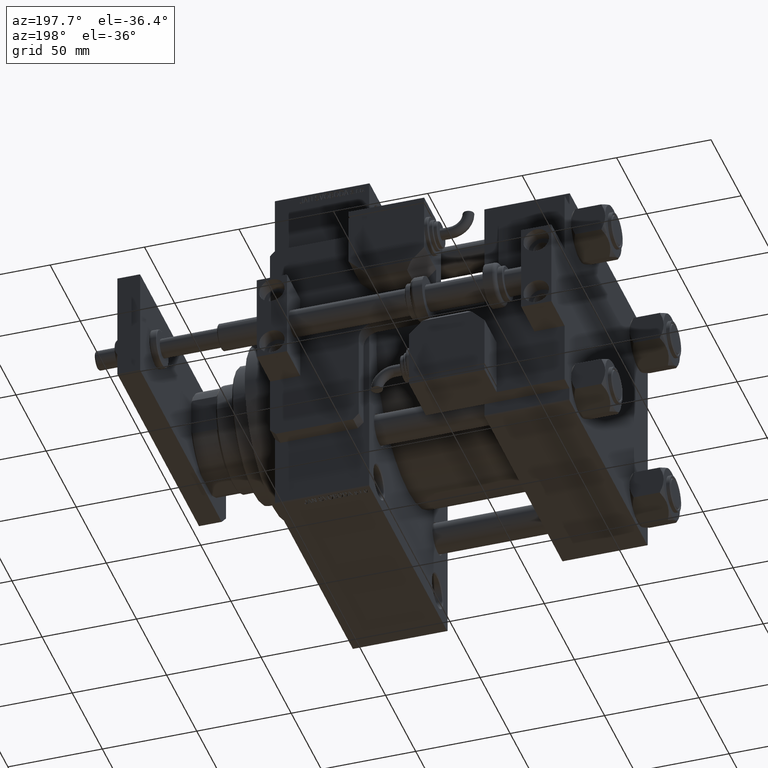
[diagram: clean part render]
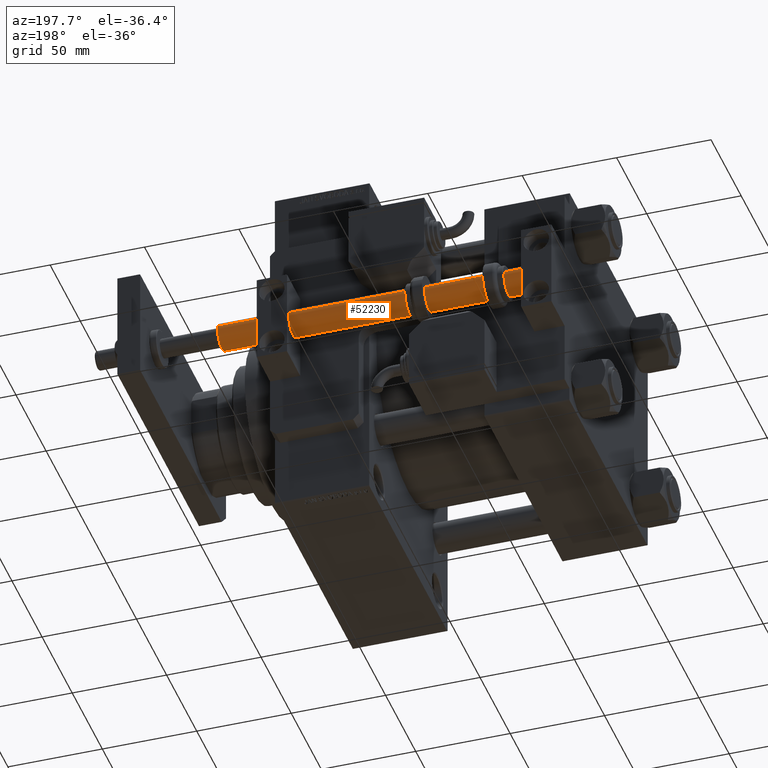
[diagram: same view with one face highlighted and labeled with its STEP entity id]
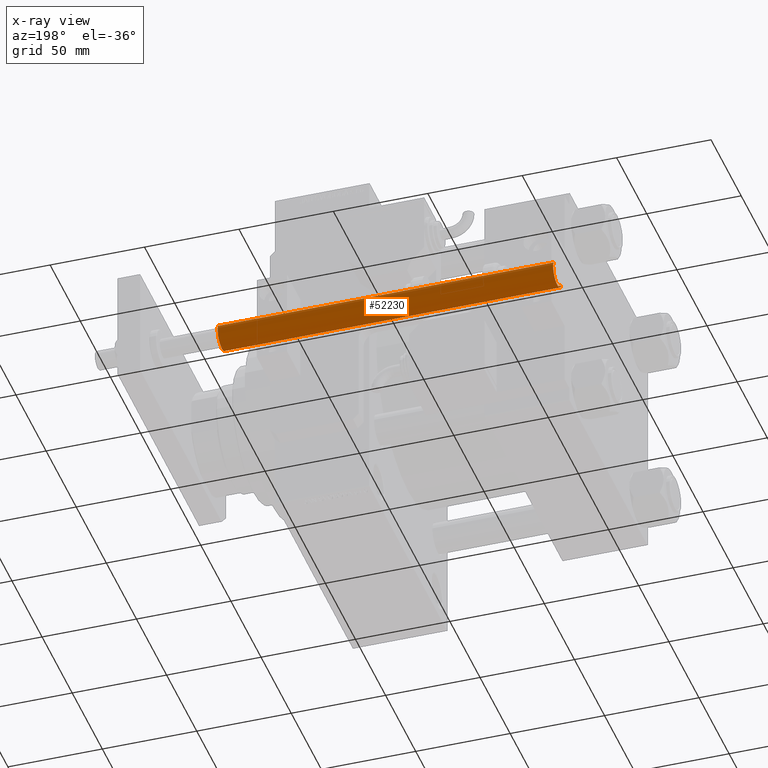
[diagram: x-ray of the same camera — body ghosted, the highlighted face saturated]
A machine part, auxiliary view. The second image highlights one B-rep face of the part: STEP entity #52230.
The next image is the same camera in x-ray: the body ghosted, the highlighted face saturated — about 0% of this face is hidden behind the body in this view.
In plain terms, the highlighted cylindrical surface (edge-blend (fillet) strip) has radius 7 mm, axis along (1, -0, 0).
Its self-contained STEP definition (entity closure, byte-faithful):
#1639 = ORIENTED_EDGE ( 'NONE', *, *, #28023, .T. ) ;
#2027 = VERTEX_POINT ( 'NONE', #12844 ) ;
#3127 = VECTOR ( 'NONE', #48361, 1000.000000000000000 ) ;
#4214 = CARTESIAN_POINT ( 'NONE',  ( -7.000000000000000000, 0.000000000000000000, 178.0000000000000000 ) ) ;
#4491 = AXIS2_PLACEMENT_3D ( 'NONE', #15153, #40550, #11104 ) ;
#7511 = CARTESIAN_POINT ( 'NONE',  ( -7.000000000000000000, 0.000000000000000000, 178.0000000000000000 ) ) ;
#9641 = ORIENTED_EDGE ( 'NONE', *, *, #39588, .F. ) ;
#10935 = DIRECTION ( 'NONE',  ( 1.000000000000000000, 0.000000000000000000, 0.000000000000000000 ) ) ;
#11104 = DIRECTION ( 'NONE',  ( 1.000000000000000000, 0.000000000000000000, 0.000000000000000000 ) ) ;
#11715 = VECTOR ( 'NONE', #36659, 1000.000000000000000 ) ;
#12132 = CYLINDRICAL_SURFACE ( 'NONE', #34728, 7.000000000000000000 ) ;
#12844 = CARTESIAN_POINT ( 'NONE',  ( 7.000000000000000000, 8.572527594031473190E-16, 0.3000000000000502265 ) ) ;
#14805 = VERTEX_POINT ( 'NONE', #32812 ) ;
#15153 = CARTESIAN_POINT ( 'NONE',  ( 0.000000000000000000, 0.000000000000000000, 178.0000000000000000 ) ) ;
#15374 = LINE ( 'NONE', #31869, #3127 ) ;
#19045 = CARTESIAN_POINT ( 'NONE',  ( 0.000000000000000000, 0.000000000000000000, 0.3000000000000502265 ) ) ;
#20512 = CARTESIAN_POINT ( 'NONE',  ( 0.000000000000000000, 0.000000000000000000, 178.0000000000000000 ) ) ;
#20785 = DIRECTION ( 'NONE',  ( -1.000000000000000000, 0.000000000000000000, 0.000000000000000000 ) ) ;
#22634 = AXIS2_PLACEMENT_3D ( 'NONE', #19045, #47964, #10935 ) ;
#24934 = EDGE_LOOP ( 'NONE', ( #28888, #25002, #1639, #9641 ) ) ;
#25002 = ORIENTED_EDGE ( 'NONE', *, *, #36528, .T. ) ;
#25263 = VERTEX_POINT ( 'NONE', #7511 ) ;
#28023 = EDGE_CURVE ( 'NONE', #2027, #51647, #42492, .T. ) ;
#28888 = ORIENTED_EDGE ( 'NONE', *, *, #52870, .F. ) ;
#29015 = CARTESIAN_POINT ( 'NONE',  ( -7.000000000000000000, 0.000000000000000000, 0.3000000000000502265 ) ) ;
#31869 = CARTESIAN_POINT ( 'NONE',  ( 7.000000000000000000, 8.572527594031473190E-16, 178.0000000000000000 ) ) ;
#32333 = LINE ( 'NONE', #4214, #11715 ) ;
#32812 = CARTESIAN_POINT ( 'NONE',  ( 7.000000000000000000, 8.572527594031473190E-16, 178.0000000000000000 ) ) ;
#34728 = AXIS2_PLACEMENT_3D ( 'NONE', #20512, #53495, #20785 ) ;
#36528 = EDGE_CURVE ( 'NONE', #14805, #2027, #15374, .T. ) ;
#36659 = DIRECTION ( 'NONE',  ( -0.000000000000000000, -0.000000000000000000, -1.000000000000000000 ) ) ;
#39588 = EDGE_CURVE ( 'NONE', #25263, #51647, #32333, .T. ) ;
#40550 = DIRECTION ( 'NONE',  ( 0.000000000000000000, 0.000000000000000000, 1.000000000000000000 ) ) ;
#42492 = CIRCLE ( 'NONE', #22634, 7.000000000000000000 ) ;
#47964 = DIRECTION ( 'NONE',  ( -0.000000000000000000, -0.000000000000000000, 1.000000000000000000 ) ) ;
#48361 = DIRECTION ( 'NONE',  ( -0.000000000000000000, -0.000000000000000000, -1.000000000000000000 ) ) ;
#49174 = FACE_OUTER_BOUND ( 'NONE', #24934, .T. ) ;
#51647 = VERTEX_POINT ( 'NONE', #29015 ) ;
#52230 = ADVANCED_FACE ( 'NONE', ( #49174 ), #12132, .T. ) ;
#52813 = CIRCLE ( 'NONE', #4491, 7.000000000000000000 ) ;
#52870 = EDGE_CURVE ( 'NONE', #14805, #25263, #52813, .T. ) ;
#53495 = DIRECTION ( 'NONE',  ( -0.000000000000000000, -0.000000000000000000, -1.000000000000000000 ) ) ;